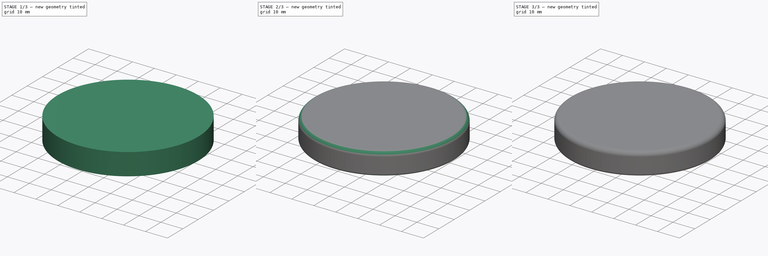
[diagram: build sequence overview — one tinted view per stage of 3, left to right]
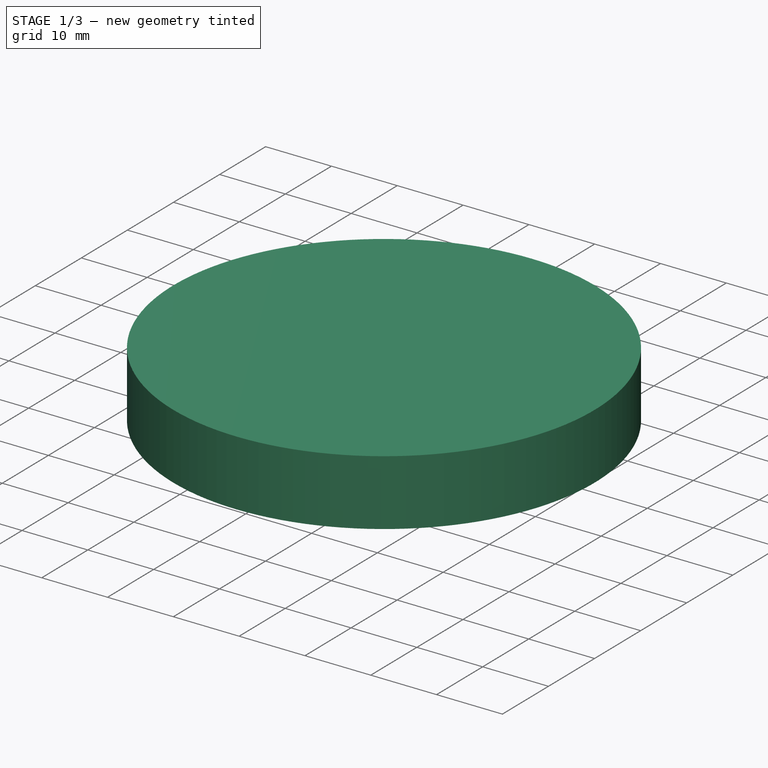
[diagram: stage 1 of 3 — iso view after this stage's code; geometry added in this stage tinted green]
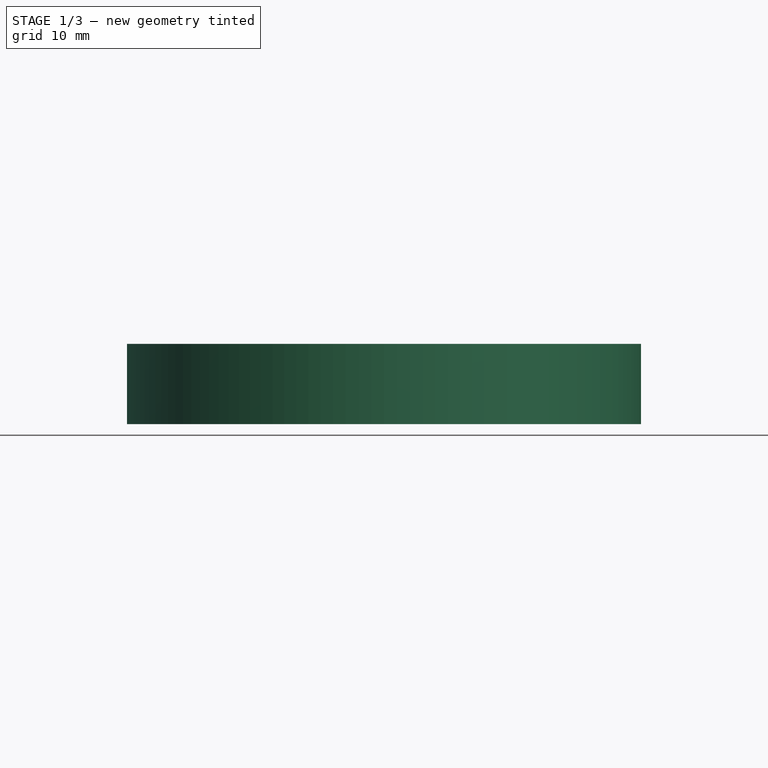
[diagram: stage 1 of 3 — front view after this stage's code; geometry added in this stage tinted green]
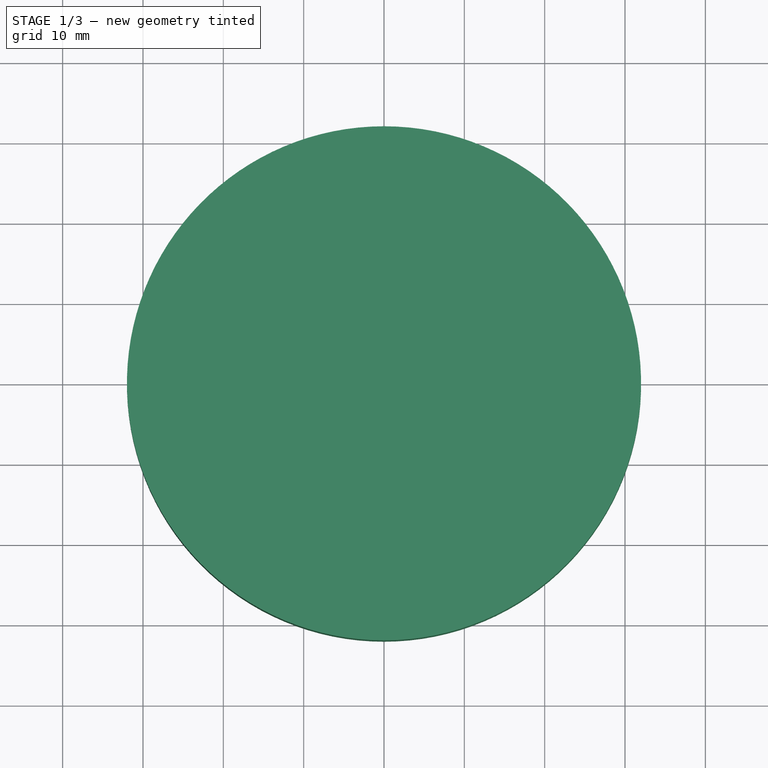
[diagram: stage 1 of 3 — top view after this stage's code; geometry added in this stage tinted green]
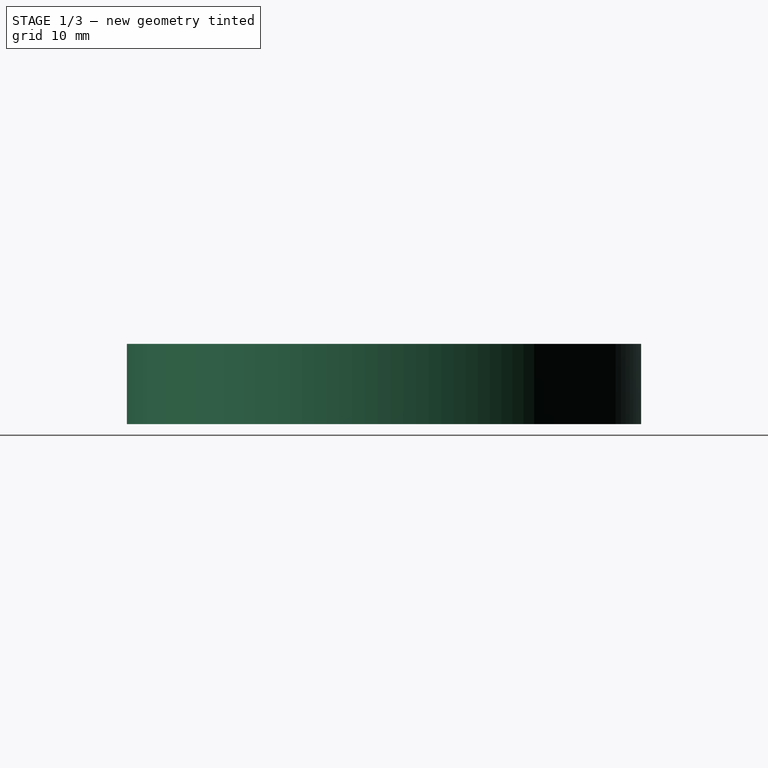
[diagram: stage 1 of 3 — right view after this stage's code; geometry added in this stage tinted green]
FCSTD DOCUMENT  (FreeCAD 1.0R39109 (Git))
Label: coffeeJarLid
License: All rights reserved
LicenseURL: https://en.wikipedia.org/wiki/All_rights_reserved
objects: PartDesign::Fillet×3, PartDesign::Revolution×2, Sketcher::SketchObject×1, Spreadsheet::Sheet×1, PartDesign::PolarPattern×1, PartDesign::Body×1
note: 20 computed .brp shape members not serialized (recipe doc carries the construction recipe); baked Part::Feature solids carry a one-line shape summary decoded from their .brp

FEATURE [Sketcher::SketchObject] Sketch
  ArcFitTolerance = 1e-06
  AttachmentSupport = -> [YZ_Plane]
  FullyConstrained = true
  MakeInternals = false
  MapMode = 5
  Placement = pos=(0,0,0) rot=(0.57735,0.57735,0.57735;2.0944rad)
  expr: Constraints[13] = <<measurement>>.outerRad
  expr: Constraints[20] = <<measurement>>.grip
  expr: Constraints[21] = <<measurement>>.wallThickness
  expr: Constraints[22] = <<measurement>>.topThickness
  expr: Constraints[23] = <<measurement>>.height
  sketch-geometry (9):
    g0: LineSegment StartX=0 StartY=8 StartZ=0 EndX=30 EndY=8 EndZ=0
    g1: LineSegment StartX=30 StartY=8 StartZ=0 EndX=30 EndY=2 EndZ=0
    g2: LineSegment StartX=30 StartY=0 StartZ=0 EndX=32 EndY=0 EndZ=0
    g3: LineSegment StartX=32 StartY=0 StartZ=0 EndX=32 EndY=10 EndZ=0
    g4: LineSegment StartX=32 StartY=10 StartZ=0 EndX=0 EndY=10 EndZ=0
    g5: LineSegment StartX=0 StartY=10 StartZ=0 EndX=0 EndY=8 EndZ=0
    g6: LineSegment StartX=30 StartY=2 StartZ=0 EndX=29 EndY=1 EndZ=0
    g7: LineSegment StartX=29 StartY=1 StartZ=0 EndX=30 EndY=0 EndZ=0
    g8: LineSegment StartX=30 StartY=2 StartZ=0 EndX=30 EndY=0 EndZ=0
  constraints (26):
    c: PointOnObject(g0,g-2)
    c: Horizontal(g0)
    c: Coincident(g1,g0)
    c: PointOnObject(g2,g-1)
    c: PointOnObject(g2,g-1)
    c: Coincident(g3,g2)
    c: Vertical(g3)
    c: PointOnObject(g4,g-2)
    c: Horizontal(g4)
    c: Coincident(g5,g4)
    c: Coincident(g5,g0)
    c: Vertical(g1)
    c: Coincident(g3,g4)
    c: DistanceX(g4,g4) = 32
    c: PointOnObject(g2,g1)
    c: Angle(g-1,g6) = -2.35619
    c: Coincident(g6,g1)
    c: Angle(g-1,g7) = -0.785398
    c: Coincident(g7,g6)
    c: Coincident(g7,g2)
    c: Distance(g6,g1) = 1
    c: DistanceX(g2,g2) = 2
    c: DistanceY(g5,g5) = 2
    c: DistanceY(g3,g3) = 10
    c: Coincident(g8,g1)
    c: Coincident(g8,g2)
FEATURE [Spreadsheet::Sheet] Spreadsheet  label="measurement"
  cells = A1='wallThickness; B1(wallThickness)==2 mm; A2='topThickness; B2(topThickness)==2 mm; A3='grip; B3(grip)==1 mm; A4='height; B4(height)==10 mm; A5='outerRad; B5(outerRad)==innerRad + 2 * wallThickness; A6='innerRad; B6(innerRad)==28 mm
FEATURE [PartDesign::Revolution] Revolution
  Angle = 360
  Angle2 = 60
  Axis = (0,0,1)
  Base = (0,0,0)
  Placement = pos=(0,0,0) rot=(1,1,1;2.0944rad)
  Profile = -> Sketch [Edge8,Edge7,Edge2,Edge1,Edge4,Edge6,Edge9]
  ReferenceAxis = -> Sketch [V_Axis]
  Refine = true
  Reversed = true
  Suppressed = false
  Type = 0
FEATURE [PartDesign::Revolution] Revolution001
  Angle = 4
  Angle2 = 60
  Axis = (0,0,1)
  Base = (0,0,0)
  BaseFeature = -> Revolution
  Placement = pos=(0,0,0) rot=(1,1,1;2.0944rad)
  Profile = -> Sketch [Edge3,Edge4,Edge5]
  ReferenceAxis = -> Sketch [V_Axis]
  Refine = true
  Reversed = true
  Suppressed = false
  Type = 0
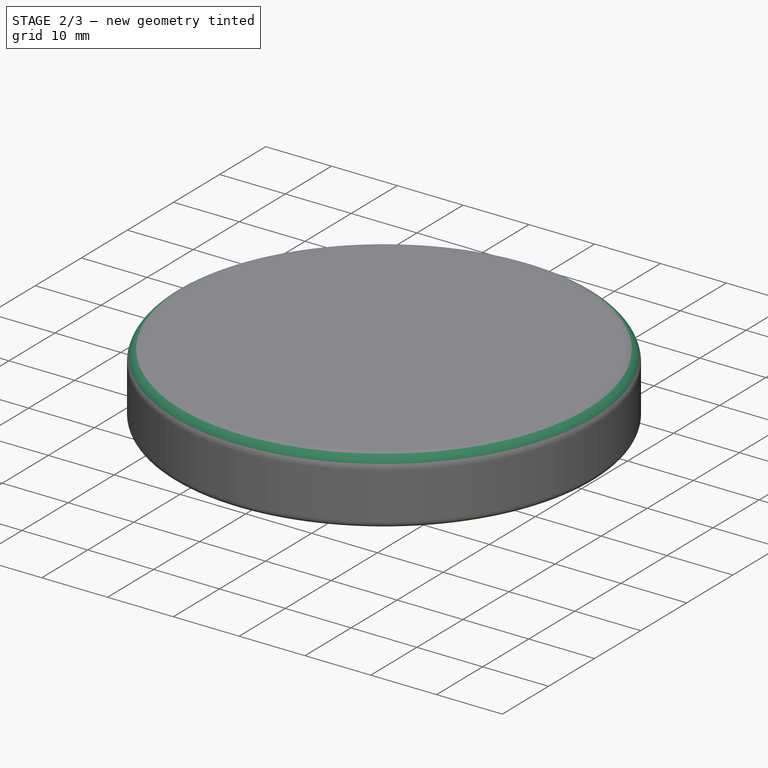
[diagram: stage 2 of 3 — iso view after this stage's code; geometry added in this stage tinted green]
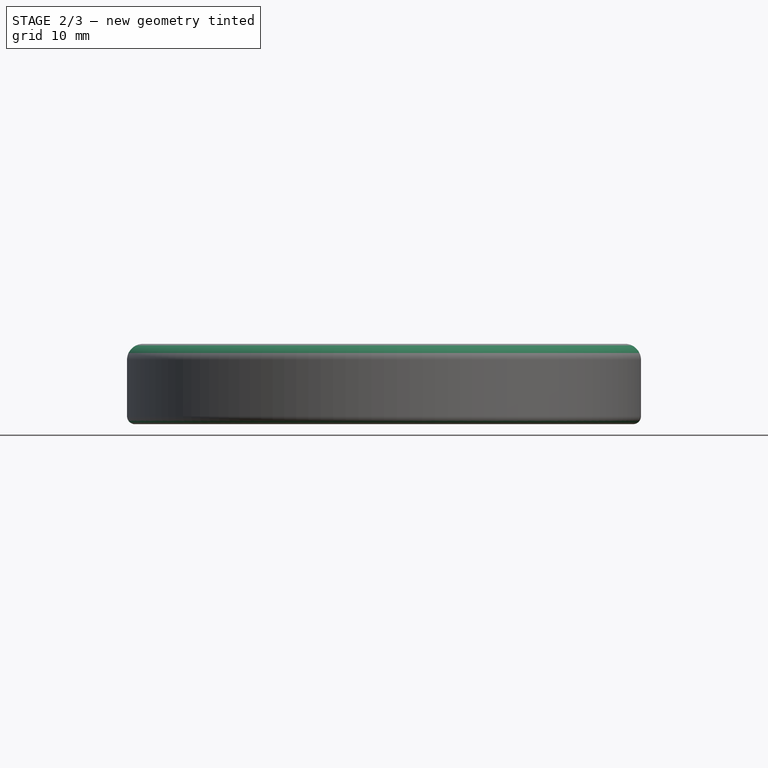
[diagram: stage 2 of 3 — front view after this stage's code; geometry added in this stage tinted green]
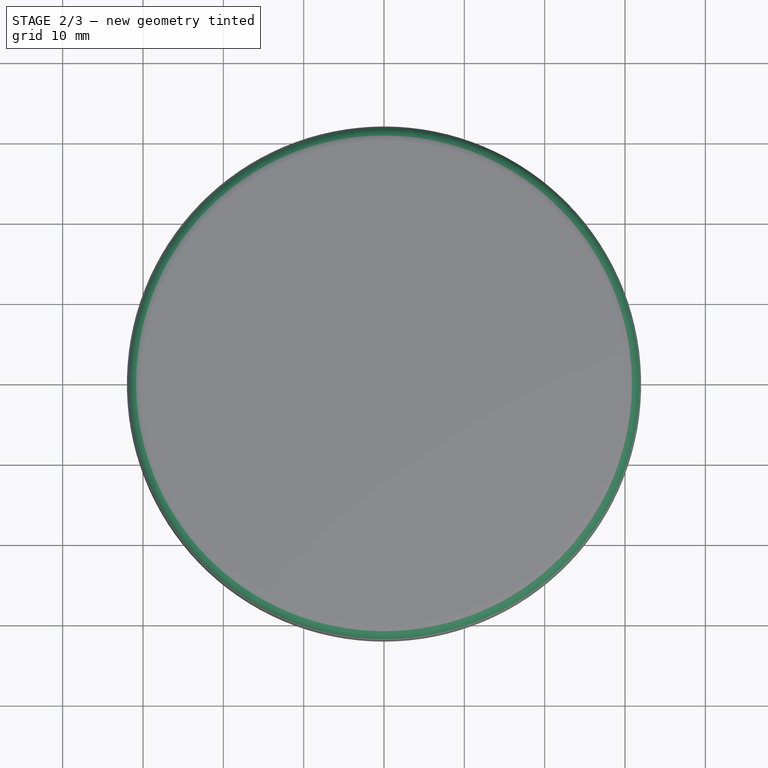
[diagram: stage 2 of 3 — top view after this stage's code; geometry added in this stage tinted green]
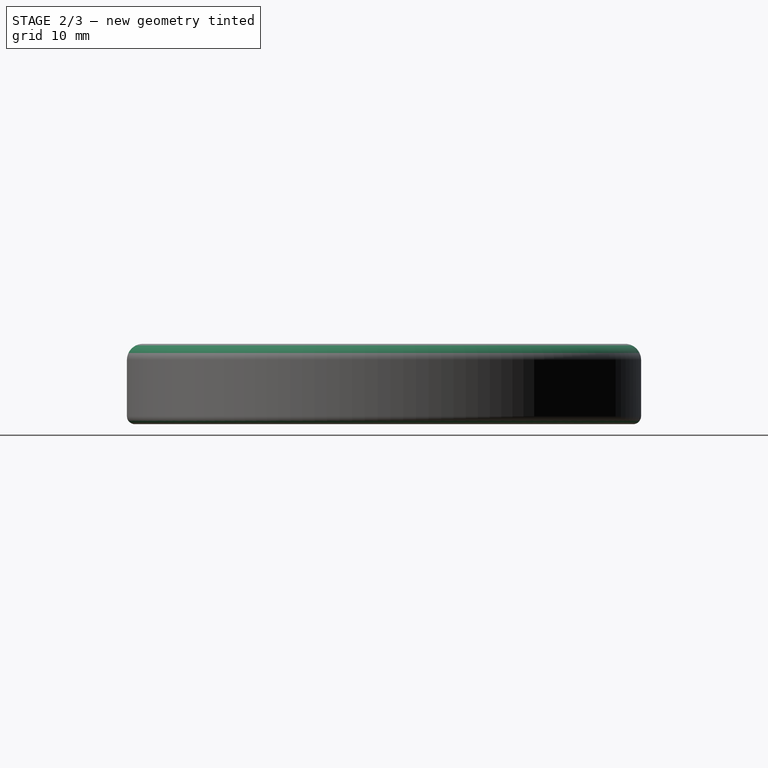
[diagram: stage 2 of 3 — right view after this stage's code; geometry added in this stage tinted green]
FEATURE [PartDesign::Fillet] Fillet
  Base = -> Revolution001 [Edge14,Edge7]
  BaseFeature = -> Revolution001
  Placement = pos=(0,0,0) rot=(1,1,1;2.0944rad)
  Radius = 2
  Refine = true
  SupportTransform = false
  Suppressed = false
  UseAllEdges = false
FEATURE [PartDesign::Fillet] Fillet001
  Base = -> Fillet [Edge14]
  BaseFeature = -> Fillet
  Placement = pos=(0,0,0) rot=(1,1,1;2.0944rad)
  Radius = 1
  Refine = true
  SupportTransform = false
  Suppressed = false
  UseAllEdges = false
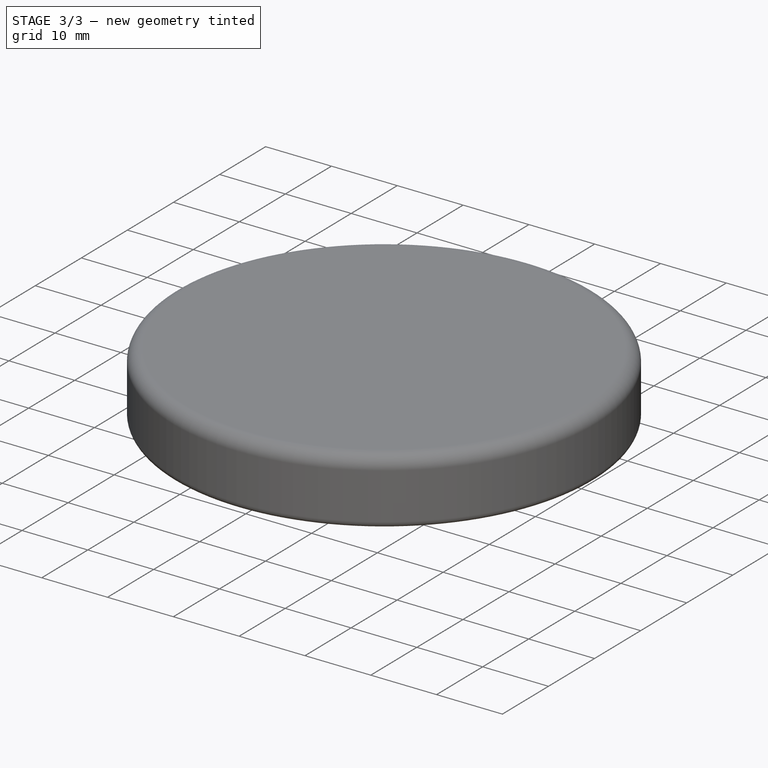
[diagram: stage 3 of 3 — iso view after this stage's code; geometry added in this stage tinted green]
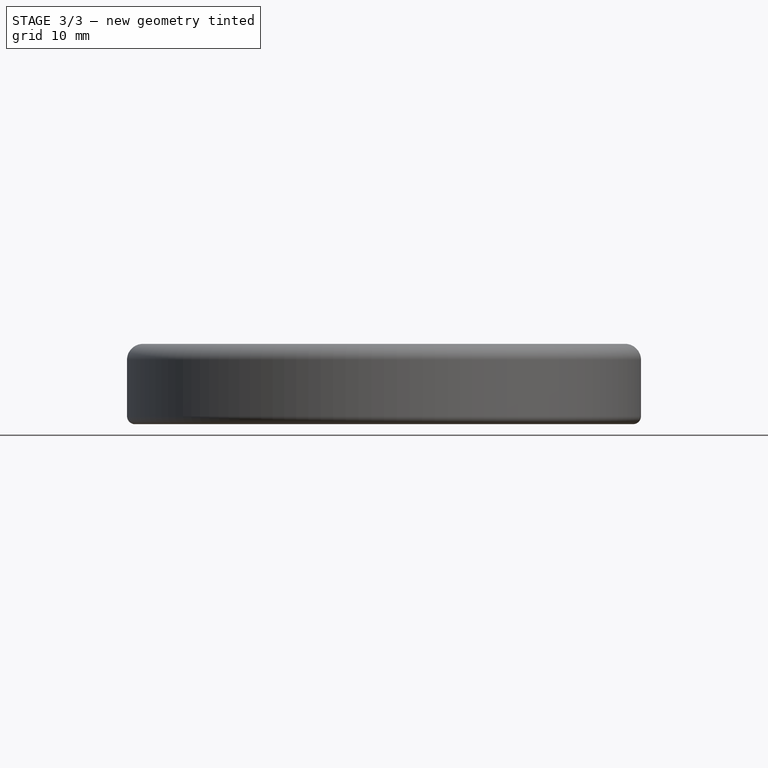
[diagram: stage 3 of 3 — front view after this stage's code; geometry added in this stage tinted green]
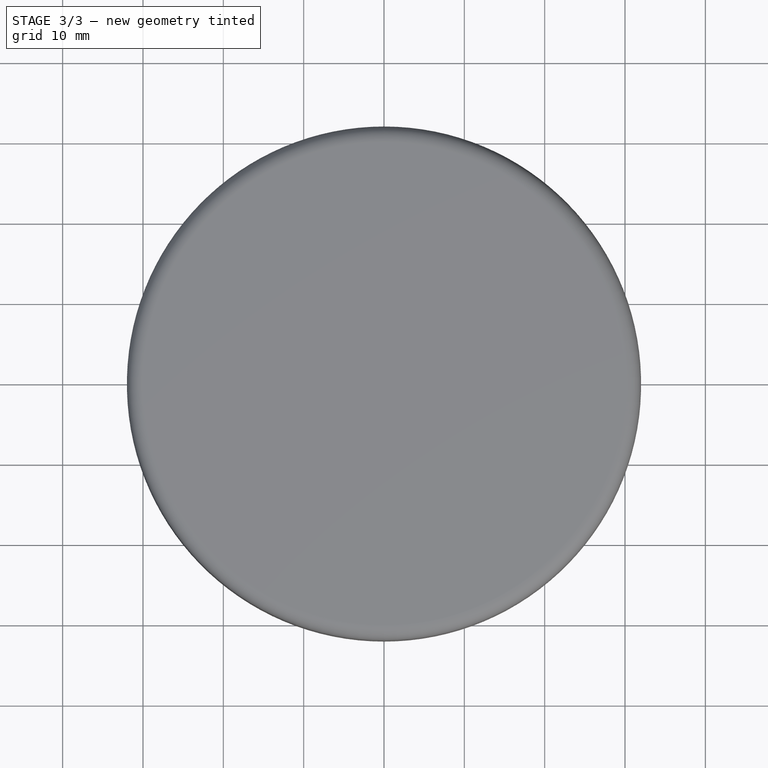
[diagram: stage 3 of 3 — top view after this stage's code; geometry added in this stage tinted green]
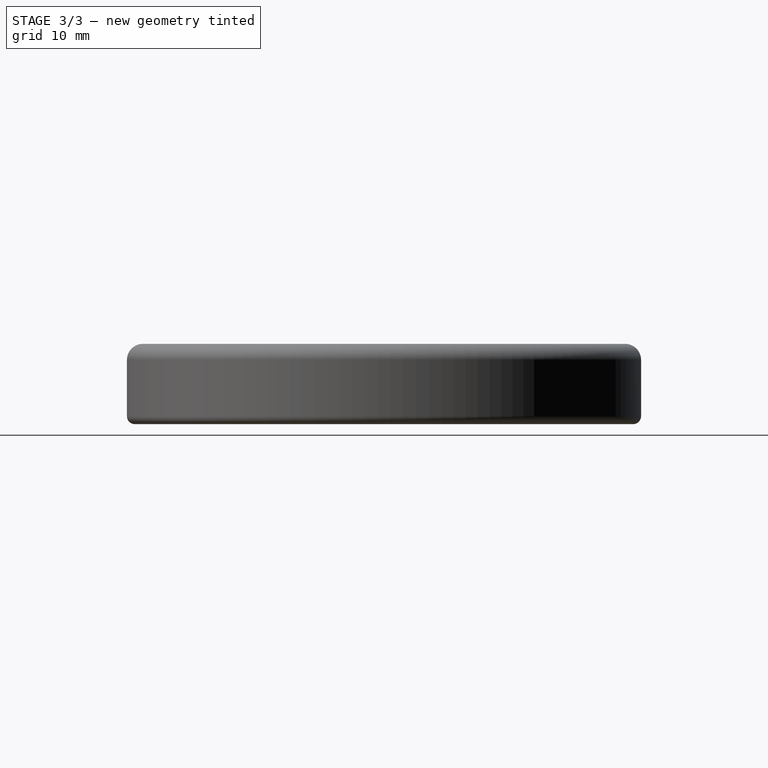
[diagram: stage 3 of 3 — right view after this stage's code; geometry added in this stage tinted green]
FEATURE [PartDesign::PolarPattern] PolarPattern
  Angle = 360
  Axis = -> Z_Axis
  BaseFeature = -> Fillet001
  Mode = 0
  Occurrences = 4
  Offset = 120
  Originals = -> [Revolution001]
  Placement = pos=(0,0,0) rot=(1,1,1;2.0944rad)
  Refine = true
  Suppressed = false
  TransformMode = 0
FEATURE [PartDesign::Fillet] Fillet002
  Base = -> PolarPattern [Edge12,Edge29,Edge35,Edge32]
  BaseFeature = -> PolarPattern
  Placement = pos=(0,0,0) rot=(1,1,1;2.0944rad)
  Radius = 1
  Refine = true
  SupportTransform = false
  Suppressed = false
  UseAllEdges = false
FEATURE [PartDesign::Body] Body
  AllowCompound = false
  Group = -> [Sketch,Revolution,Revolution001,Fillet,Fillet001,PolarPattern,Fillet002]
  Origin = -> Origin
  Tip = -> Fillet002
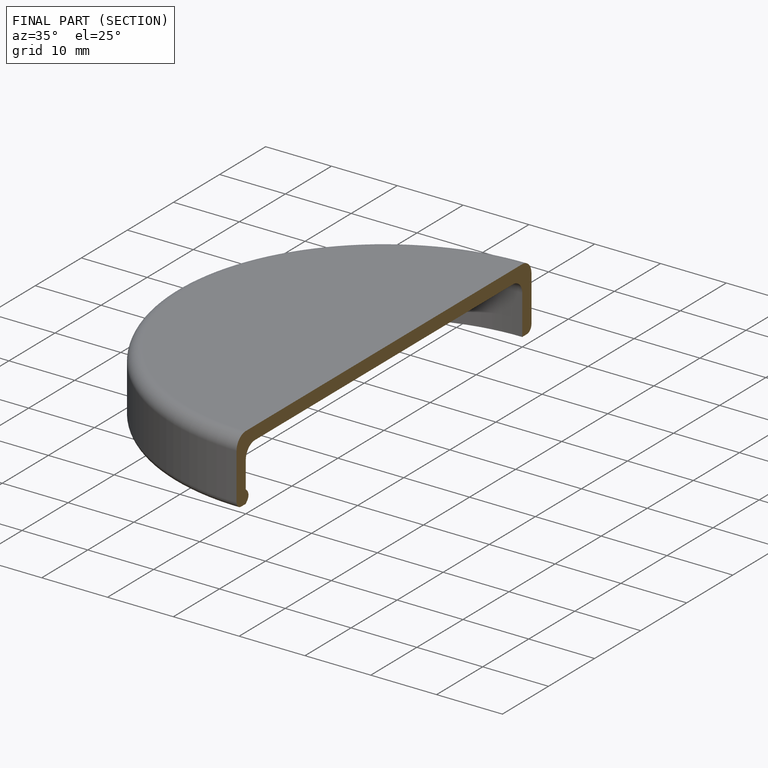
[diagram: finished part — half-section view (interior)]
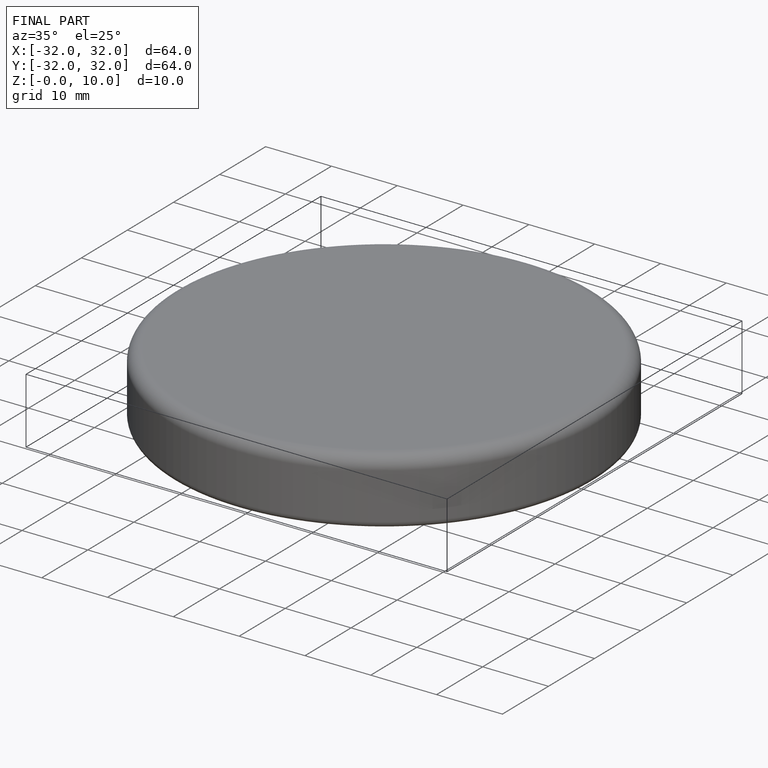
[diagram: finished part — iso view with bounding-box wireframe]
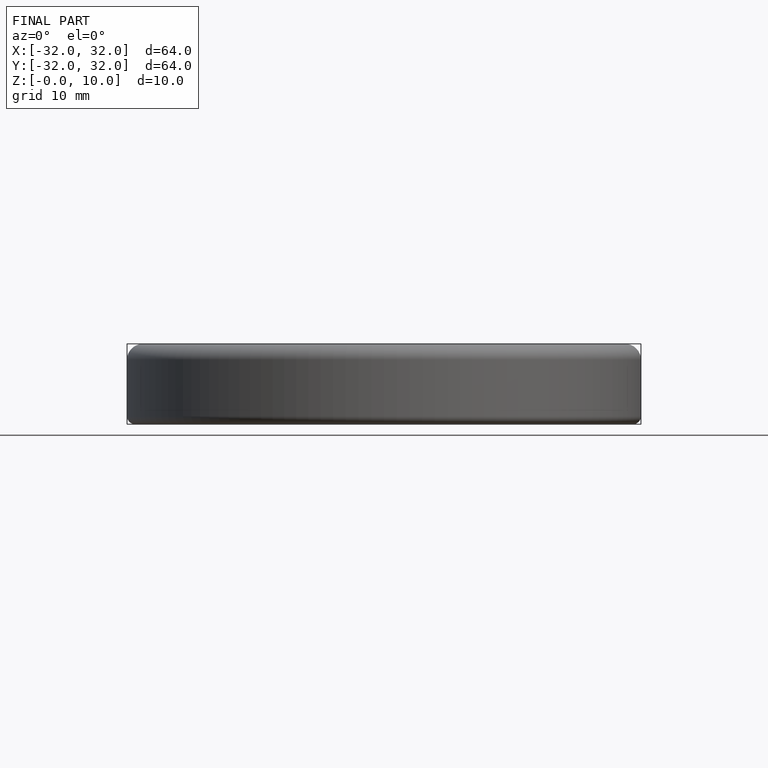
[diagram: finished part — front view with bounding-box wireframe]
